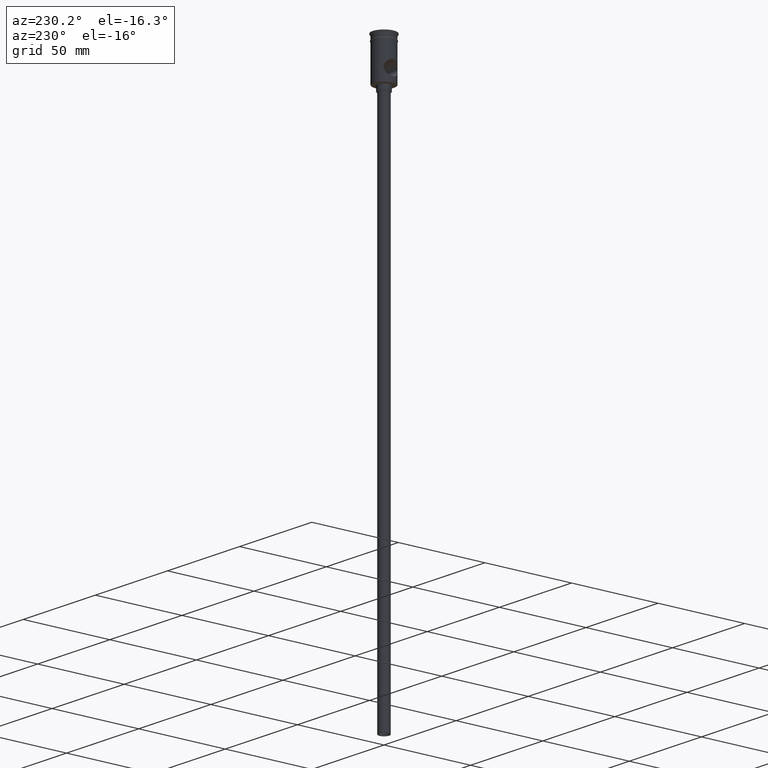
[diagram: clean part render]
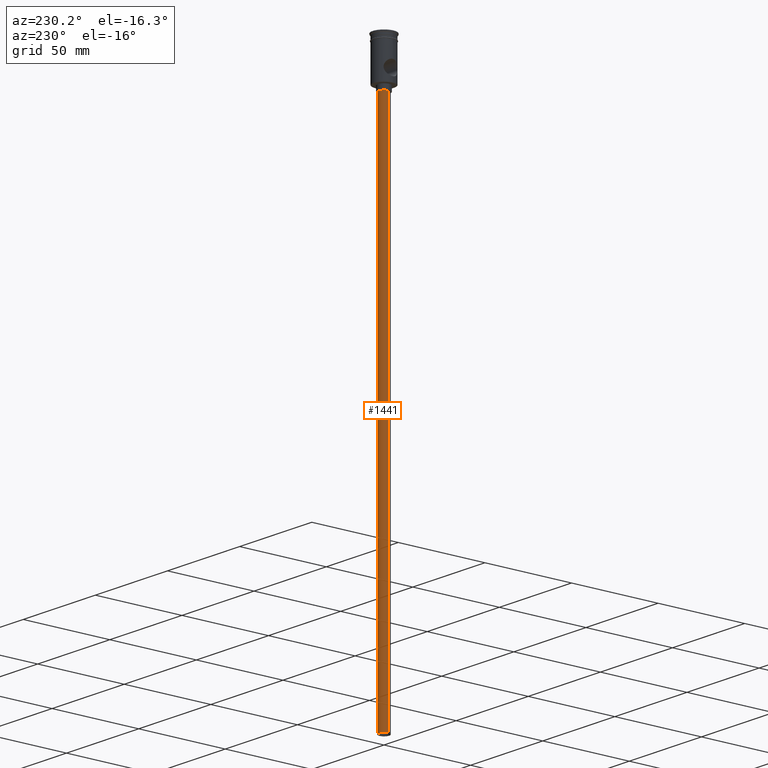
[diagram: same view with one face highlighted and labeled with its STEP entity id]
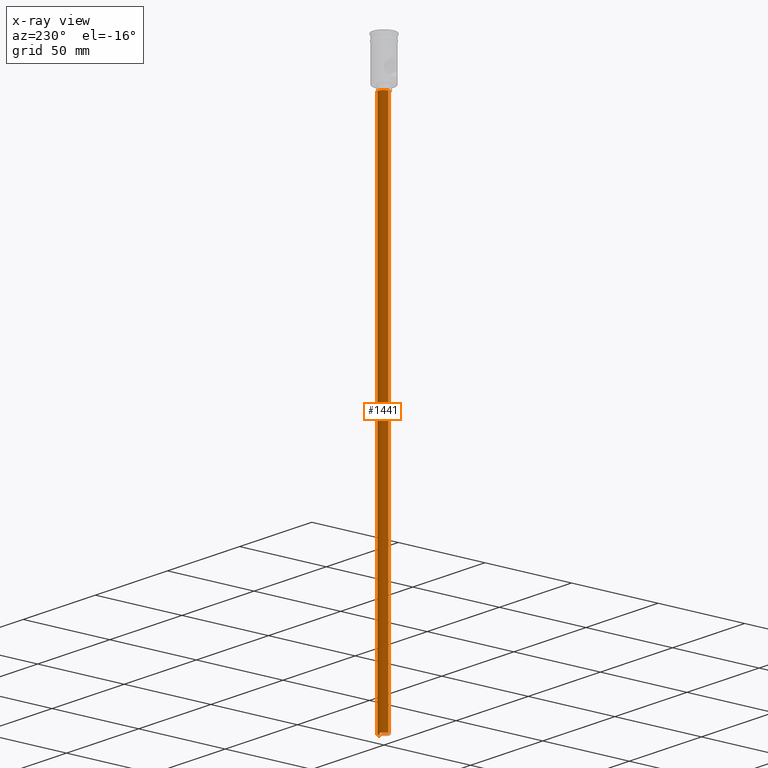
[diagram: x-ray of the same camera — body ghosted, the highlighted face saturated]
A machine part, auxiliary view. The second image highlights one B-rep face of the part: STEP entity #1441.
The next image is the same camera in x-ray: the body ghosted, the highlighted face saturated — about 0% of this face is hidden behind the body in this view.
In plain terms, the highlighted cylindrical surface (edge-blend (fillet) strip) has radius 3 mm, axis along (-0, -0, 1).
Its self-contained STEP definition (entity closure, byte-faithful):
#19 = VERTEX_POINT ( 'NONE', #1283 ) ;
#22 = CARTESIAN_POINT ( 'NONE',  ( 0.000000000000000000, 0.000000000000000000, -27.00000000000000000 ) ) ;
#42 = CARTESIAN_POINT ( 'NONE',  ( -3.000000000000000444, 3.673940397442060361E-16, -27.00000000000000000 ) ) ;
#114 = DIRECTION ( 'NONE',  ( -0.000000000000000000, -0.000000000000000000, 1.000000000000000000 ) ) ;
#121 = CARTESIAN_POINT ( 'NONE',  ( 3.000000000000000444, 0.000000000000000000, -324.0000000000000000 ) ) ;
#137 = DIRECTION ( 'NONE',  ( -0.000000000000000000, -0.000000000000000000, 1.000000000000000000 ) ) ;
#138 = CYLINDRICAL_SURFACE ( 'NONE', #190, 3.000000000000000444 ) ;
#144 = DIRECTION ( 'NONE',  ( -0.000000000000000000, -0.000000000000000000, 1.000000000000000000 ) ) ;
#146 = EDGE_LOOP ( 'NONE', ( #735, #576, #270, #1443 ) ) ;
#190 = AXIS2_PLACEMENT_3D ( 'NONE', #1049, #144, #697 ) ;
#199 = EDGE_CURVE ( 'NONE', #341, #19, #1196, .T. ) ;
#202 = CARTESIAN_POINT ( 'NONE',  ( 3.000000000000000444, 0.000000000000000000, -27.00000000000000000 ) ) ;
#247 = EDGE_CURVE ( 'NONE', #341, #744, #480, .T. ) ;
#249 = DIRECTION ( 'NONE',  ( 0.000000000000000000, 0.000000000000000000, -1.000000000000000000 ) ) ;
#264 = EDGE_CURVE ( 'NONE', #19, #1260, #594, .T. ) ;
#270 = ORIENTED_EDGE ( 'NONE', *, *, #1449, .T. ) ;
#289 = CARTESIAN_POINT ( 'NONE',  ( -3.000000000000000444, 3.673940397442060361E-16, -324.0000000000000000 ) ) ;
#341 = VERTEX_POINT ( 'NONE', #289 ) ;
#452 = DIRECTION ( 'NONE',  ( -1.000000000000000000, 0.000000000000000000, 0.000000000000000000 ) ) ;
#480 = LINE ( 'NONE', #1154, #489 ) ;
#489 = VECTOR ( 'NONE', #137, 1000.000000000000000 ) ;
#576 = ORIENTED_EDGE ( 'NONE', *, *, #247, .T. ) ;
#580 = DIRECTION ( 'NONE',  ( 0.000000000000000000, 0.000000000000000000, -1.000000000000000000 ) ) ;
#591 = CIRCLE ( 'NONE', #1177, 3.000000000000000444 ) ;
#594 = LINE ( 'NONE', #121, #1318 ) ;
#697 = DIRECTION ( 'NONE',  ( 1.000000000000000000, 0.000000000000000000, 0.000000000000000000 ) ) ;
#735 = ORIENTED_EDGE ( 'NONE', *, *, #199, .F. ) ;
#744 = VERTEX_POINT ( 'NONE', #42 ) ;
#1049 = CARTESIAN_POINT ( 'NONE',  ( 0.000000000000000000, 0.000000000000000000, -324.0000000000000000 ) ) ;
#1154 = CARTESIAN_POINT ( 'NONE',  ( -3.000000000000000444, 3.673940397442060361E-16, -324.0000000000000000 ) ) ;
#1155 = FACE_OUTER_BOUND ( 'NONE', #146, .T. ) ;
#1177 = AXIS2_PLACEMENT_3D ( 'NONE', #22, #580, #1383 ) ;
#1196 = CIRCLE ( 'NONE', #1342, 3.000000000000000444 ) ;
#1260 = VERTEX_POINT ( 'NONE', #202 ) ;
#1283 = CARTESIAN_POINT ( 'NONE',  ( 3.000000000000000444, 0.000000000000000000, -324.0000000000000000 ) ) ;
#1318 = VECTOR ( 'NONE', #114, 1000.000000000000000 ) ;
#1342 = AXIS2_PLACEMENT_3D ( 'NONE', #1376, #249, #452 ) ;
#1376 = CARTESIAN_POINT ( 'NONE',  ( 0.000000000000000000, 0.000000000000000000, -324.0000000000000000 ) ) ;
#1383 = DIRECTION ( 'NONE',  ( -1.000000000000000000, 0.000000000000000000, 0.000000000000000000 ) ) ;
#1441 = ADVANCED_FACE ( 'NONE', ( #1155 ), #138, .T. ) ;
#1443 = ORIENTED_EDGE ( 'NONE', *, *, #264, .F. ) ;
#1449 = EDGE_CURVE ( 'NONE', #744, #1260, #591, .T. ) ;